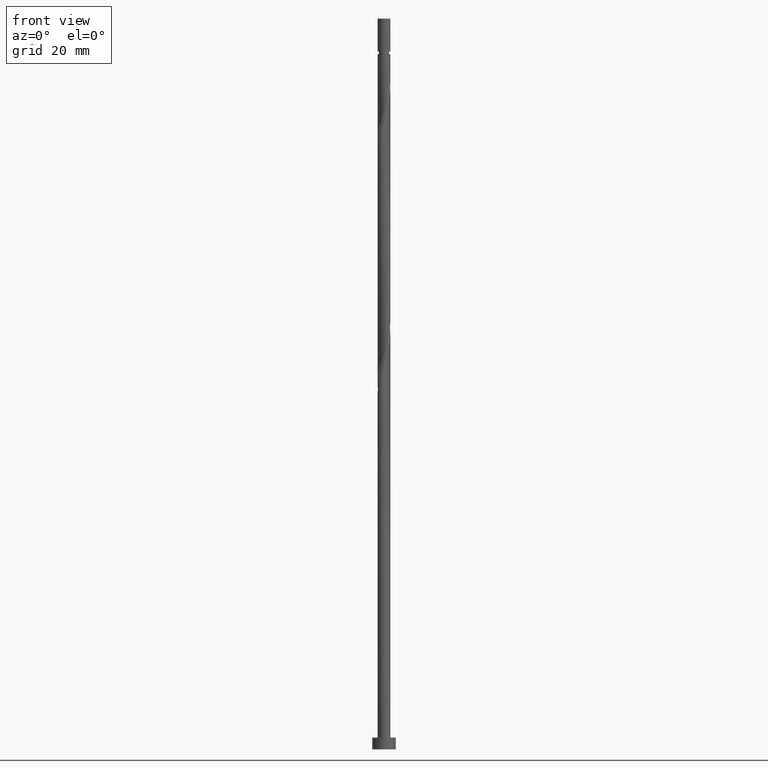
[diagram: clean part render]
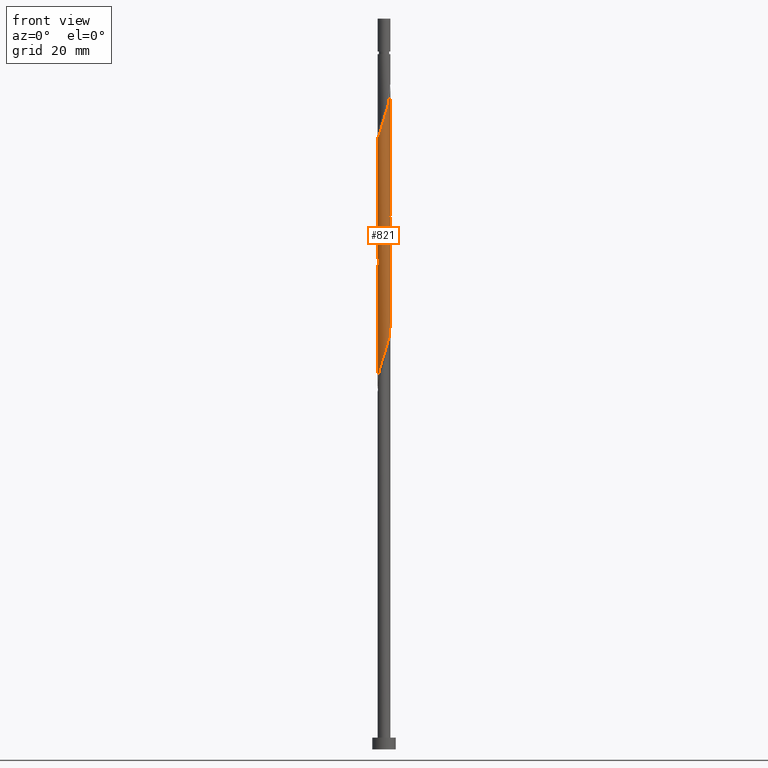
[diagram: same view with one face highlighted and labeled with its STEP entity id]
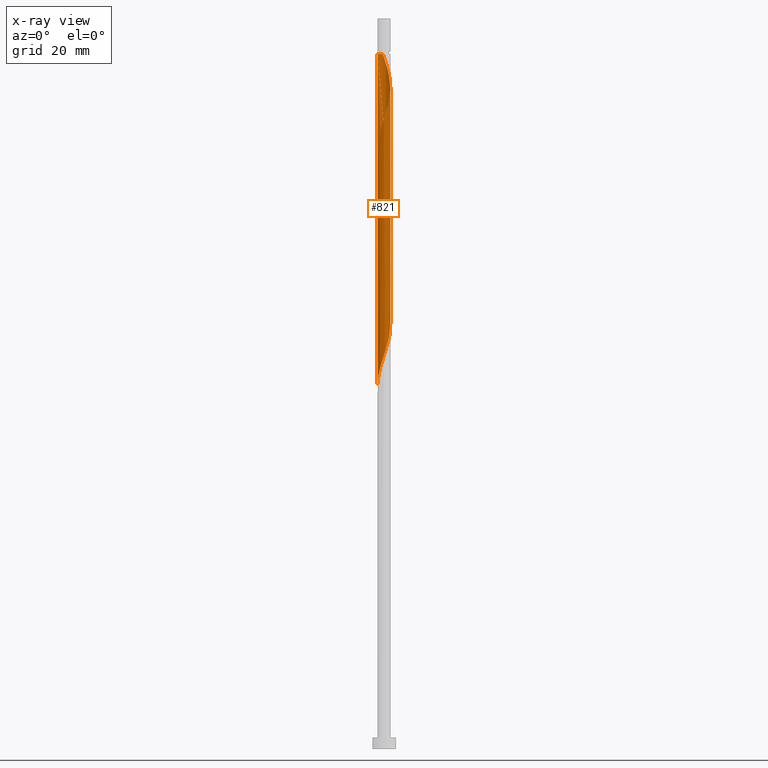
[diagram: x-ray of the same camera — body ghosted, the highlighted face saturated]
A machine part, front view. The second image highlights one B-rep face of the part: STEP entity #821.
The next image is the same camera in x-ray: the body ghosted, the highlighted face saturated — about 0% of this face is hidden behind the body in this view.
In plain terms, the highlighted cylindrical surface (bore or boss wall) has radius 1.1 mm, axis along (-0, -0, -1).
Its self-contained STEP definition (entity closure, byte-faithful):
#3 = CARTESIAN_POINT ( 'NONE',  ( 0.04815880949360618751, 1.112669916238338663, 98.62611197831979837 ) ) ;
#8 = CARTESIAN_POINT ( 'NONE',  ( -1.100000000000001643, -3.748275695801401353E-16, 102.6488095368494839 ) ) ;
#26 = CARTESIAN_POINT ( 'NONE',  ( 0.9284759093548696773, 0.6150496721252036725, 74.66777864498645556 ) ) ;
#32 = CARTESIAN_POINT ( 'NONE',  ( 0.2980321636614846059, -1.073093864886444537, 89.25111197831979837 ) ) ;
#35 = EDGE_CURVE ( 'NONE', #1400, #432, #963, .T. ) ;
#53 = CARTESIAN_POINT ( 'NONE',  ( -0.04815880949360632629, -1.112669916238338663, 88.20944531165311275 ) ) ;
#64 = CARTESIAN_POINT ( 'NONE',  ( 0.8718618333782606200, -0.6929722627435896953, 70.50111197831979837 ) ) ;
#72 = CARTESIAN_POINT ( 'NONE',  ( 1.100000000000000089, 1.347111479062088503E-16, 125.0000000000000000 ) ) ;
#77 = ORIENTED_EDGE ( 'NONE', *, *, #719, .T. ) ;
#84 = ORIENTED_EDGE ( 'NONE', *, *, #377, .F. ) ;
#86 = ORIENTED_EDGE ( 'NONE', *, *, #719, .F. ) ;
#87 = CARTESIAN_POINT ( 'NONE',  ( -1.100000000000001865, 1.086999951782407472E-15, 62.31174775312337033 ) ) ;
#95 = CARTESIAN_POINT ( 'NONE',  ( 0.2980321636614851610, 1.073093864886444315, 117.3761119783197699 ) ) ;
#103 = CARTESIAN_POINT ( 'NONE',  ( 1.092881890562390934, 0.1249366770839391572, 93.93861197831976995 ) ) ;
#115 = CARTESIAN_POINT ( 'NONE',  ( 0.6929722627435899174, 0.8718618333782606200, 96.54277864498644135 ) ) ;
#140 = CARTESIAN_POINT ( 'NONE',  ( 0.04815880949360618751, 1.112669916238338663, 77.79277864498645556 ) ) ;
#144 = CARTESIAN_POINT ( 'NONE',  ( 0.6150496721252037835, -0.9284759093548697884, 90.29277864498644135 ) ) ;
#150 = CARTESIAN_POINT ( 'NONE',  ( -0.9575959585699626020, 0.5413039627884479454, 81.43861197831974152 ) ) ;
#165 = CARTESIAN_POINT ( 'NONE',  ( 1.100000000000001865, -0.1105541596785141190, 93.22744317771552858 ) ) ;
#178 = CARTESIAN_POINT ( 'NONE',  ( 0.4565409178933442225, -1.000784887120656830, 68.93861197831975574 ) ) ;
#184 = CARTESIAN_POINT ( 'NONE',  ( -0.9284759093548695663, -0.6150496721252037835, 64.25111197831976995 ) ) ;
#190 = CARTESIAN_POINT ( 'NONE',  ( -0.6929722627435896953, -0.8718618333782606200, 65.29277864498644135 ) ) ;
#199 = CARTESIAN_POINT ( 'NONE',  ( 0.8718618333782610641, 0.6929722627435893623, 115.2927786449864413 ) ) ;
#201 = EDGE_CURVE ( 'NONE', #1224, #827, #1130, .T. ) ;
#209 = CARTESIAN_POINT ( 'NONE',  ( 1.043330083761664806, 0.3896356628333066952, 114.2511119783197699 ) ) ;
#262 = CARTESIAN_POINT ( 'NONE',  ( -1.112669916238338663, 0.04815880949360622915, 83.00111197831978416 ) ) ;
#268 = CARTESIAN_POINT ( 'NONE',  ( 0.2188972361634567709, 1.078000000000001402, 77.27194531165309854 ) ) ;
#271 = EDGE_CURVE ( 'NONE', #362, #827, #1221, .T. ) ;
#272 = CARTESIAN_POINT ( 'NONE',  ( -0.2980321636614850500, -1.073093864886444315, 106.9594453116531128 ) ) ;
#277 = CARTESIAN_POINT ( 'NONE',  ( 1.100000000000001865, -1.214441325439655480E-15, 93.56174775312337033 ) ) ;
#285 = CARTESIAN_POINT ( 'NONE',  ( 0.5413039627884485006, 0.9575959585699626020, 76.23027864498642714 ) ) ;
#289 = EDGE_LOOP ( 'NONE', ( #84, #1103, #524, #1212, #309, #86, #77, #833 ) ) ;
#292 = CARTESIAN_POINT ( 'NONE',  ( 1.043330083761664806, -0.3896356628333071948, 71.54277864498645556 ) ) ;
#298 = CARTESIAN_POINT ( 'NONE',  ( -1.000784887120656830, -0.4565409178933442225, 63.73027864498642714 ) ) ;
#305 = CARTESIAN_POINT ( 'NONE',  ( 0.000000000000000000, 0.000000000000000000, 125.0000000000000000 ) ) ;
#309 = ORIENTED_EDGE ( 'NONE', *, *, #696, .F. ) ;
#312 = CARTESIAN_POINT ( 'NONE',  ( 1.073093864886444537, 0.2980321636614846059, 73.62611197831976995 ) ) ;
#313 = CARTESIAN_POINT ( 'NONE',  ( 1.000784887120656830, -0.4565409178933442780, 111.6469453116530559 ) ) ;
#332 = CARTESIAN_POINT ( 'NONE',  ( -0.04815880949360587526, 1.112669916238338219, 118.4177786449864698 ) ) ;
#335 = CARTESIAN_POINT ( 'NONE',  ( -1.043330083761665028, 0.3896356628333069172, 102.7927786449864556 ) ) ;
#362 = VERTEX_POINT ( 'NONE', #8 ) ;
#370 = CARTESIAN_POINT ( 'NONE',  ( 0.9575959585699626020, -0.5413039627884483895, 91.85527864498644135 ) ) ;
#377 = EDGE_CURVE ( 'NONE', #1224, #1400, #1364, .T. ) ;
#380 = CARTESIAN_POINT ( 'NONE',  ( -0.3896356628333070282, -1.043330083761664806, 87.16777864498644135 ) ) ;
#385 = CARTESIAN_POINT ( 'NONE',  ( -1.100000000000001865, -0.1105541596785123426, 102.9831141122573115 ) ) ;
#387 = CARTESIAN_POINT ( 'NONE',  ( -0.4565409178933443335, 1.000784887120656830, 79.35527864498644135 ) ) ;
#402 = CARTESIAN_POINT ( 'NONE',  ( -0.7434557527517323683, 0.8107240860492294088, 80.39694531165308433 ) ) ;
#426 = CARTESIAN_POINT ( 'NONE',  ( -0.1249366770839393098, 1.092881890562391156, 99.14694531165309854 ) ) ;
#429 = CARTESIAN_POINT ( 'NONE',  ( -0.04815880949360632629, -1.112669916238338663, 67.37611197831976995 ) ) ;
#432 = VERTEX_POINT ( 'NONE', #1355 ) ;
#433 = CARTESIAN_POINT ( 'NONE',  ( 1.100000000000001865, -1.214441325439655480E-15, 93.56174775312337033 ) ) ;
#434 = CARTESIAN_POINT ( 'NONE',  ( 0.5413039627884480565, -0.9575959585699627130, 109.5636119783197415 ) ) ;
#440 = CARTESIAN_POINT ( 'NONE',  ( -0.2188972361634559383, 1.077999999999998293, 118.9386119783197842 ) ) ;
#450 = CARTESIAN_POINT ( 'NONE',  ( 0.2188972361634563546, -1.078000000000001846, 108.5219453116530559 ) ) ;
#452 = CARTESIAN_POINT ( 'NONE',  ( -1.100000000000000755, 0.1105541596785190317, 103.6441098443822142 ) ) ;
#487 = CARTESIAN_POINT ( 'NONE',  ( -0.2188972361634566322, -1.078000000000001402, 87.68861197831975574 ) ) ;
#500 = CARTESIAN_POINT ( 'NONE',  ( -1.000784887120656830, -0.4565409178933442225, 84.56361197831976995 ) ) ;
#507 = CARTESIAN_POINT ( 'NONE',  ( -1.073093864886444537, -0.2980321636614848835, 84.04277864498642714 ) ) ;
#510 = VECTOR ( 'NONE', #1433, 1000.000000000000000 ) ;
#516 = CARTESIAN_POINT ( 'NONE',  ( -1.099999999999997424, 0.000000000000000000, 118.9386119783197557 ) ) ;
#524 = ORIENTED_EDGE ( 'NONE', *, *, #271, .F. ) ;
#525 = CARTESIAN_POINT ( 'NONE',  ( -0.5413039627884482785, -0.9575959585699626020, 65.81361197831975574 ) ) ;
#536 = CARTESIAN_POINT ( 'NONE',  ( 1.073093864886444537, 0.2980321636614846059, 94.45944531165311275 ) ) ;
#543 = CARTESIAN_POINT ( 'NONE',  ( 1.000784887120656830, 0.4565409178933441670, 74.14694531165309854 ) ) ;
#548 = CARTESIAN_POINT ( 'NONE',  ( 0.9575959585699626020, -0.5413039627884483895, 71.02194531165309854 ) ) ;
#566 = CARTESIAN_POINT ( 'NONE',  ( 1.092881890562391600, -0.1249366770839395041, 112.6886119783197273 ) ) ;
#568 = CARTESIAN_POINT ( 'NONE',  ( 0.5413039627884485006, 0.9575959585699626020, 97.06361197831976995 ) ) ;
#593 = CARTESIAN_POINT ( 'NONE',  ( 0.3896356628333071948, 1.043330083761664806, 76.75111197831978416 ) ) ;
#603 = CARTESIAN_POINT ( 'NONE',  ( -0.9575959585699627130, -0.5413039627884481675, 104.3552786449863987 ) ) ;
#612 = CARTESIAN_POINT ( 'NONE',  ( 0.8107240860492297418, 0.7434557527517321462, 75.18861197831976995 ) ) ;
#615 = CARTESIAN_POINT ( 'NONE',  ( -0.6150496721252038945, -0.9284759093548696773, 105.9177786449864556 ) ) ;
#619 = CARTESIAN_POINT ( 'NONE',  ( -0.5413039627884482785, -0.9575959585699626020, 86.64694531165305591 ) ) ;
#626 = EDGE_CURVE ( 'NONE', #362, #1301, #816, .T. ) ;
#628 = CARTESIAN_POINT ( 'NONE',  ( -1.100000000000001643, 5.247585974121966529E-16, 103.9784144197900133 ) ) ;
#643 = LINE ( 'NONE', #72, #510 ) ;
#646 = CARTESIAN_POINT ( 'NONE',  ( -0.2980321636614848835, 1.073093864886444537, 99.66777864498646977 ) ) ;
#648 = CARTESIAN_POINT ( 'NONE',  ( -1.100000000000000977, -0.06267111119107882100, 62.50125884233065676 ) ) ;
#658 = CARTESIAN_POINT ( 'NONE',  ( 0.7434557527517322573, 0.8107240860492290757, 115.8136119783197557 ) ) ;
#678 = CARTESIAN_POINT ( 'NONE',  ( 0.3896356628333071948, 1.043330083761664806, 97.58444531165308433 ) ) ;
#696 = EDGE_CURVE ( 'NONE', #432, #1301, #858, .T. ) ;
#717 = CARTESIAN_POINT ( 'NONE',  ( -1.078000000000001402, 0.2188972361634565489, 82.48027864498641293 ) ) ;
#719 = EDGE_CURVE ( 'NONE', #885, #432, #643, .T. ) ;
#726 = CARTESIAN_POINT ( 'NONE',  ( -0.8107240860492296308, -0.7434557527517321462, 85.60527864498641293 ) ) ;
#733 = CARTESIAN_POINT ( 'NONE',  ( -0.6929722627435896953, -0.8718618333782606200, 86.12611197831978416 ) ) ;
#739 = CARTESIAN_POINT ( 'NONE',  ( -0.2188972361634566322, -1.078000000000001402, 66.85527864498641293 ) ) ;
#751 = CARTESIAN_POINT ( 'NONE',  ( 0.1249366770839391849, -1.092881890562390934, 67.89694531165309854 ) ) ;
#757 = CARTESIAN_POINT ( 'NONE',  ( -0.4565409178933443335, 1.000784887120656830, 100.1886119783197557 ) ) ;
#759 = CARTESIAN_POINT ( 'NONE',  ( -0.3896356628333070282, -1.043330083761664806, 66.33444531165311275 ) ) ;
#763 = CARTESIAN_POINT ( 'NONE',  ( 0.000000000000000000, 0.000000000000000000, 118.9386119783197557 ) ) ;
#768 = CARTESIAN_POINT ( 'NONE',  ( -1.100000000000001643, -3.748275695801401353E-16, 102.6488095368494697 ) ) ;
#778 = CARTESIAN_POINT ( 'NONE',  ( 0.8107240860492292978, -0.7434557527517321462, 110.6052786449864413 ) ) ;
#786 = CARTESIAN_POINT ( 'NONE',  ( 1.073093864886444315, -0.2980321636614850500, 112.1677786449864413 ) ) ;
#788 = CARTESIAN_POINT ( 'NONE',  ( -0.8718618333782606200, 0.6929722627435896953, 101.7511119783197984 ) ) ;
#804 = CARTESIAN_POINT ( 'NONE',  ( -1.100000000000000089, 0.000000000000000000, 125.0000000000000000 ) ) ;
#815 = AXIS2_PLACEMENT_3D ( 'NONE', #305, #865, #847 ) ;
#816 = LINE ( 'NONE', #944, #1426 ) ;
#821 = ADVANCED_FACE ( 'NONE', ( #1186 ), #855, .T. ) ;
#822 = DIRECTION ( 'NONE',  ( -0.000000000000000000, -0.000000000000000000, -1.000000000000000000 ) ) ;
#827 = VERTEX_POINT ( 'NONE', #1412 ) ;
#829 = CARTESIAN_POINT ( 'NONE',  ( 0.7434557527517321462, -0.8107240860492296308, 90.81361197831975574 ) ) ;
#833 = ORIENTED_EDGE ( 'NONE', *, *, #35, .F. ) ;
#847 = DIRECTION ( 'NONE',  ( -1.000000000000000000, 0.000000000000000000, 0.000000000000000000 ) ) ;
#855 = CYLINDRICAL_SURFACE ( 'NONE', #815, 1.100000000000000089 ) ;
#858 =( BOUNDED_CURVE ( )  B_SPLINE_CURVE ( 2, ( #277, #165, #1049, #1288, #370, #1173, #829, #144, #1065, #32, #1395, #53, #487, #380, #619, #733, #726, #1180, #500, #507, #1040, #262, #717, #1166, #150, #1057, #402, #937, #387, #1280, #1295, #140, #268, #593, #285, #1153, #612, #26, #543, #312, #1079, #1309, #1208, #292, #548, #64, #979, #1086, #178, #960, #751, #429, #739, #759, #525, #190, #1425, #184, #298, #1100, #1332, #648, #87 ),
 .UNSPECIFIED., .F., .T. ) 
 B_SPLINE_CURVE_WITH_KNOTS ( ( 3, 2, 2, 2, 2, 2, 2, 2, 2, 2, 2, 2, 2, 2, 2, 2, 2, 2, 2, 2, 2, 2, 2, 2, 2, 2, 2, 2, 2, 2, 2, 3 ),
 ( 0.5545322023138552492, 0.5625000000000000000, 0.5749999999999999556, 0.5875000000000000222, 0.5999999999999999778, 0.6125000000000000444, 0.6250000000000000000, 0.6374999999999999556, 0.6500000000000000222, 0.6624999999999999778, 0.6750000000000000444, 0.6875000000000000000, 0.6999999999999999556, 0.7125000000000000222, 0.7249999999999999778, 0.7375000000000000444, 0.7500000000000000000, 0.7624999999999999556, 0.7750000000000000222, 0.7874999999999999778, 0.8000000000000000444, 0.8125000000000000000, 0.8249999999999999556, 0.8375000000000000222, 0.8499999999999999778, 0.8625000000000000444, 0.8750000000000000000, 0.8874999999999999556, 0.9000000000000000222, 0.9124999999999999778, 0.9250000000000000444, 0.9295322023138550271 ),
 .UNSPECIFIED. ) 
 CURVE ( )  GEOMETRIC_REPRESENTATION_ITEM ( )  RATIONAL_B_SPLINE_CURVE ( ( 0.9039174447099460608, 0.9019565955404754698, 0.9090909090909240486, 0.8978984914501398906, 0.9090909090909240486, 0.8978984914501398906, 0.9090909090909240486, 0.8978984914501398906, 0.9090909090909240486, 0.8978984914501398906, 0.9090909090909240486, 0.8978984914501398906, 0.9090909090909240486, 0.8978984914501398906, 0.9090909090909240486, 0.8978984914501398906, 0.9090909090909240486, 0.8978984914501398906, 0.9090909090909240486, 0.8978984914501398906, 0.9090909090909240486, 0.8978984914501398906, 0.9090909090909240486, 0.8978984914501398906, 0.9090909090909240486, 0.8978984914501398906, 0.9090909090909240486, 0.8978984914501398906, 0.9090909090909240486, 0.8978984914501398906, 0.9090909090909240486, 0.8978984914501398906, 0.9090909090909240486, 0.8978984914501398906, 0.9090909090909240486, 0.8978984914501398906, 0.9090909090909240486, 0.8978984914501398906, 0.9090909090909240486, 0.8978984914501398906, 0.9090909090909240486, 0.8978984914501398906, 0.9090909090909240486, 0.8978984914501398906, 0.9090909090909240486, 0.8978984914501398906, 0.9090909090909240486, 0.8978984914501398906, 0.9090909090909240486, 0.8978984914501398906, 0.9090909090909240486, 0.8978984914501398906, 0.9090909090909240486, 0.8978984914501398906, 0.9090909090909240486, 0.8978984914501398906, 0.9090909090909240486, 0.8978984914501398906, 0.9090909090909240486, 0.8978984914501398906, 0.9090909090909240486, 0.9050328050005884695, 0.9039174447099462828 ) ) 
 REPRESENTATION_ITEM ( '' )  );
#865 = DIRECTION ( 'NONE',  ( -0.000000000000000000, -0.000000000000000000, -1.000000000000000000 ) ) ;
#875 = CARTESIAN_POINT ( 'NONE',  ( 0.6929722627435893623, -0.8718618333782610641, 110.0844453116531128 ) ) ;
#885 = VERTEX_POINT ( 'NONE', #1323 ) ;
#891 = CARTESIAN_POINT ( 'NONE',  ( 0.3896356628333068617, -1.043330083761664806, 109.0427786449864413 ) ) ;
#898 = CARTESIAN_POINT ( 'NONE',  ( 1.112669916238338219, 0.04815880949360592383, 113.2094453116530985 ) ) ;
#926 = CARTESIAN_POINT ( 'NONE',  ( -0.8718618333782610641, -0.6929722627435896953, 104.8761119783197557 ) ) ;
#937 = CARTESIAN_POINT ( 'NONE',  ( -0.6150496721252038945, 0.9284759093548696773, 79.87611197831976995 ) ) ;
#944 = CARTESIAN_POINT ( 'NONE',  ( -1.100000000000000089, 0.000000000000000000, 125.0000000000000000 ) ) ;
#960 = CARTESIAN_POINT ( 'NONE',  ( 0.2980321636614846059, -1.073093864886444537, 68.41777864498644135 ) ) ;
#963 =( BOUNDED_CURVE ( )  B_SPLINE_CURVE ( 2, ( #1005, #452, #1345, #335, #984, #788, #1431, #1315, #757, #646, #426, #3, #1014, #678, #568, #115, #1126, #971, #1420, #536, #103, #1101, #433 ),
 .UNSPECIFIED., .F., .T. ) 
 B_SPLINE_CURVE_WITH_KNOTS ( ( 3, 2, 2, 2, 2, 2, 2, 2, 2, 2, 2, 3 ),
 ( 0.4295322023138555823, 0.4375000000000000000, 0.4500000000000000111, 0.4625000000000000222, 0.4749999999999999778, 0.4874999999999999889, 0.5000000000000000000, 0.5124999999999999556, 0.5250000000000000222, 0.5374999999999999778, 0.5500000000000000444, 0.5545322023138552492 ),
 .UNSPECIFIED. ) 
 CURVE ( )  GEOMETRIC_REPRESENTATION_ITEM ( )  RATIONAL_B_SPLINE_CURVE ( ( 0.9039174447099460608, 0.9019565955404758029, 0.9090909090909240486, 0.8978984914501398906, 0.9090909090909240486, 0.8978984914501398906, 0.9090909090909240486, 0.8978984914501398906, 0.9090909090909240486, 0.8978984914501398906, 0.9090909090909240486, 0.8978984914501398906, 0.9090909090909240486, 0.8978984914501398906, 0.9090909090909240486, 0.8978984914501398906, 0.9090909090909240486, 0.8978984914501398906, 0.9090909090909240486, 0.8978984914501398906, 0.9090909090909240486, 0.9050328050005883584, 0.9039174447099460608 ) ) 
 REPRESENTATION_ITEM ( '' )  );
#971 = CARTESIAN_POINT ( 'NONE',  ( 0.9284759093548696773, 0.6150496721252036725, 95.50111197831978416 ) ) ;
#972 = CARTESIAN_POINT ( 'NONE',  ( -0.4565409178933442780, -1.000784887120656830, 106.4386119783197699 ) ) ;
#979 = CARTESIAN_POINT ( 'NONE',  ( 0.7434557527517321462, -0.8107240860492296308, 69.98027864498645556 ) ) ;
#984 = CARTESIAN_POINT ( 'NONE',  ( -0.9575959585699626020, 0.5413039627884479454, 102.2719453116531128 ) ) ;
#1005 = CARTESIAN_POINT ( 'NONE',  ( -1.100000000000001643, 5.247585974121966529E-16, 103.9784144197900133 ) ) ;
#1009 = AXIS2_PLACEMENT_3D ( 'NONE', #763, #1211, #1324 ) ;
#1014 = CARTESIAN_POINT ( 'NONE',  ( 0.2188972361634567709, 1.078000000000001402, 98.10527864498644135 ) ) ;
#1024 = DIRECTION ( 'NONE',  ( -0.000000000000000000, -0.000000000000000000, -1.000000000000000000 ) ) ;
#1040 = CARTESIAN_POINT ( 'NONE',  ( -1.092881890562390934, -0.1249366770839392127, 83.52194531165309854 ) ) ;
#1049 = CARTESIAN_POINT ( 'NONE',  ( 1.078000000000001402, -0.2188972361634566877, 92.89694531165309854 ) ) ;
#1057 = CARTESIAN_POINT ( 'NONE',  ( -0.8718618333782606200, 0.6929722627435896953, 80.91777864498642714 ) ) ;
#1065 = CARTESIAN_POINT ( 'NONE',  ( 0.4565409178933442225, -1.000784887120656830, 89.77194531165309854 ) ) ;
#1079 = CARTESIAN_POINT ( 'NONE',  ( 1.092881890562390934, 0.1249366770839391572, 73.10527864498642714 ) ) ;
#1084 = CARTESIAN_POINT ( 'NONE',  ( -1.078000000000001846, -0.2188972361634564656, 103.3136119783197273 ) ) ;
#1086 = CARTESIAN_POINT ( 'NONE',  ( 0.6150496721252037835, -0.9284759093548697884, 69.45944531165309854 ) ) ;
#1100 = CARTESIAN_POINT ( 'NONE',  ( -1.073093864886444537, -0.2980321636614848835, 63.20944531165310565 ) ) ;
#1101 = CARTESIAN_POINT ( 'NONE',  ( 1.100000000000001421, 0.06267111119107564299, 93.75125884233065676 ) ) ;
#1103 = ORIENTED_EDGE ( 'NONE', *, *, #201, .T. ) ;
#1107 = CARTESIAN_POINT ( 'NONE',  ( 0.6150496721252040055, 0.9284759093548696773, 116.3344453116531128 ) ) ;
#1115 = CARTESIAN_POINT ( 'NONE',  ( 0.4565409178933444445, 1.000784887120656830, 116.8552786449863987 ) ) ;
#1126 = CARTESIAN_POINT ( 'NONE',  ( 0.8107240860492297418, 0.7434557527517321462, 96.02194531165307012 ) ) ;
#1130 = CIRCLE ( 'NONE', #1009, 1.099999999999997424 ) ;
#1133 = CARTESIAN_POINT ( 'NONE',  ( -0.7434557527517321462, -0.8107240860492292978, 105.3969453116530417 ) ) ;
#1153 = CARTESIAN_POINT ( 'NONE',  ( 0.6929722627435899174, 0.8718618333782606200, 75.70944531165312696 ) ) ;
#1164 = VECTOR ( 'NONE', #1024, 1000.000000000000000 ) ;
#1166 = CARTESIAN_POINT ( 'NONE',  ( -1.043330083761665028, 0.3896356628333069172, 81.95944531165311275 ) ) ;
#1173 = CARTESIAN_POINT ( 'NONE',  ( 0.8718618333782606200, -0.6929722627435896953, 91.33444531165312696 ) ) ;
#1180 = CARTESIAN_POINT ( 'NONE',  ( -0.9284759093548695663, -0.6150496721252037835, 85.08444531165312696 ) ) ;
#1186 = FACE_OUTER_BOUND ( 'NONE', #289, .T. ) ;
#1208 = CARTESIAN_POINT ( 'NONE',  ( 1.078000000000001402, -0.2188972361634566877, 72.06361197831974152 ) ) ;
#1211 = DIRECTION ( 'NONE',  ( -0.000000000000000000, -0.000000000000000000, -1.000000000000000000 ) ) ;
#1212 = ORIENTED_EDGE ( 'NONE', *, *, #626, .T. ) ;
#1215 = CARTESIAN_POINT ( 'NONE',  ( 1.078000000000001846, 0.2188972361634563546, 113.7302786449864129 ) ) ;
#1221 =( BOUNDED_CURVE ( )  B_SPLINE_CURVE ( 2, ( #768, #385, #1084, #1306, #603, #926, #1133, #615, #972, #272, #1435, #1327, #450, #891, #434, #875, #778, #1226, #313, #786, #566, #898, #1215, #209, #1441, #199, #658, #1107, #1115, #95, #1350, #332, #440 ),
 .UNSPECIFIED., .F., .T. ) 
 B_SPLINE_CURVE_WITH_KNOTS ( ( 3, 2, 2, 2, 2, 2, 2, 2, 2, 2, 2, 2, 2, 2, 2, 2, 3 ),
 ( 0.5545322023138551382, 0.5625000000000000000, 0.5749999999999999556, 0.5875000000000000222, 0.5999999999999999778, 0.6125000000000000444, 0.6250000000000000000, 0.6374999999999999556, 0.6500000000000000222, 0.6624999999999999778, 0.6750000000000000444, 0.6875000000000000000, 0.6999999999999999556, 0.7125000000000000222, 0.7249999999999999778, 0.7375000000000000444, 0.7500000000000000000 ),
 .UNSPECIFIED. ) 
 CURVE ( )  GEOMETRIC_REPRESENTATION_ITEM ( )  RATIONAL_B_SPLINE_CURVE ( ( 0.9039174447099468379, 0.9019565955404760249, 0.9090909090909247148, 0.8978984914501405568, 0.9090909090909247148, 0.8978984914501405568, 0.9090909090909247148, 0.8978984914501405568, 0.9090909090909247148, 0.8978984914501405568, 0.9090909090909247148, 0.8978984914501405568, 0.9090909090909247148, 0.8978984914501405568, 0.9090909090909247148, 0.8978984914501405568, 0.9090909090909247148, 0.8978984914501405568, 0.9090909090909247148, 0.8978984914501405568, 0.9090909090909247148, 0.8978984914501405568, 0.9090909090909247148, 0.8978984914501405568, 0.9090909090909247148, 0.8978984914501405568, 0.9090909090909247148, 0.8978984914501405568, 0.9090909090909247148, 0.8978984914501405568, 0.9090909090909247148, 0.8978984914501405568, 0.9090909090909247148 ) ) 
 REPRESENTATION_ITEM ( '' )  );
#1224 = VERTEX_POINT ( 'NONE', #516 ) ;
#1226 = CARTESIAN_POINT ( 'NONE',  ( 0.9284759093548696773, -0.6150496721252038945, 111.1261119783197557 ) ) ;
#1280 = CARTESIAN_POINT ( 'NONE',  ( -0.2980321636614848835, 1.073093864886444537, 78.83444531165311275 ) ) ;
#1288 = CARTESIAN_POINT ( 'NONE',  ( 1.043330083761664806, -0.3896356628333071948, 92.37611197831979837 ) ) ;
#1295 = CARTESIAN_POINT ( 'NONE',  ( -0.1249366770839393098, 1.092881890562391156, 78.31361197831978416 ) ) ;
#1301 = VERTEX_POINT ( 'NONE', #1413 ) ;
#1306 = CARTESIAN_POINT ( 'NONE',  ( -1.043330083761664806, -0.3896356628333069727, 103.8344453116530985 ) ) ;
#1309 = CARTESIAN_POINT ( 'NONE',  ( 1.112669916238338663, -0.04815880949360639568, 72.58444531165312696 ) ) ;
#1315 = CARTESIAN_POINT ( 'NONE',  ( -0.6150496721252038945, 0.9284759093548696773, 100.7094453116531128 ) ) ;
#1323 = CARTESIAN_POINT ( 'NONE',  ( 1.100000000000000089, 1.347111479062088503E-16, 118.9386119783197842 ) ) ;
#1324 = DIRECTION ( 'NONE',  ( -1.000000000000000000, 0.000000000000000000, 0.000000000000000000 ) ) ;
#1327 = CARTESIAN_POINT ( 'NONE',  ( 0.04815880949360597241, -1.112669916238338219, 108.0011119783197699 ) ) ;
#1332 = CARTESIAN_POINT ( 'NONE',  ( -1.092881890562390934, -0.1249366770839392127, 62.68861197831976284 ) ) ;
#1345 = CARTESIAN_POINT ( 'NONE',  ( -1.078000000000001402, 0.2188972361634565489, 103.3136119783197557 ) ) ;
#1350 = CARTESIAN_POINT ( 'NONE',  ( 0.1249366770839396151, 1.092881890562391600, 117.8969453116530701 ) ) ;
#1355 = CARTESIAN_POINT ( 'NONE',  ( 1.100000000000001865, -1.214441325439655480E-15, 93.56174775312337033 ) ) ;
#1364 = LINE ( 'NONE', #804, #1164 ) ;
#1395 = CARTESIAN_POINT ( 'NONE',  ( 0.1249366770839391849, -1.092881890562390934, 88.73027864498642714 ) ) ;
#1400 = VERTEX_POINT ( 'NONE', #628 ) ;
#1412 = CARTESIAN_POINT ( 'NONE',  ( -0.2188972361634559383, 1.077999999999998293, 118.9386119783197842 ) ) ;
#1413 = CARTESIAN_POINT ( 'NONE',  ( -1.100000000000001865, 1.086999951782407669E-15, 62.31174775312337033 ) ) ;
#1420 = CARTESIAN_POINT ( 'NONE',  ( 1.000784887120656830, 0.4565409178933441670, 94.98027864498642714 ) ) ;
#1425 = CARTESIAN_POINT ( 'NONE',  ( -0.8107240860492296308, -0.7434557527517321462, 64.77194531165308433 ) ) ;
#1426 = VECTOR ( 'NONE', #822, 1000.000000000000000 ) ;
#1431 = CARTESIAN_POINT ( 'NONE',  ( -0.7434557527517323683, 0.8107240860492294088, 101.2302786449864413 ) ) ;
#1433 = DIRECTION ( 'NONE',  ( -0.000000000000000000, -0.000000000000000000, -1.000000000000000000 ) ) ;
#1435 = CARTESIAN_POINT ( 'NONE',  ( -0.1249366770839394208, -1.092881890562391600, 107.4802786449864129 ) ) ;
#1441 = CARTESIAN_POINT ( 'NONE',  ( 0.9575959585699627130, 0.5413039627884479454, 114.7719453116530417 ) ) ;